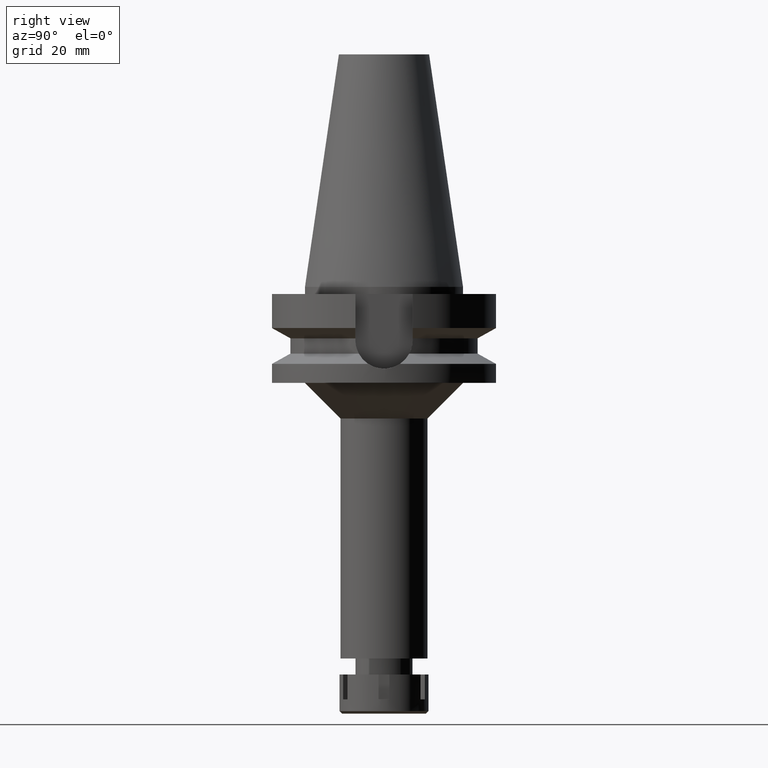
[diagram: clean part render]
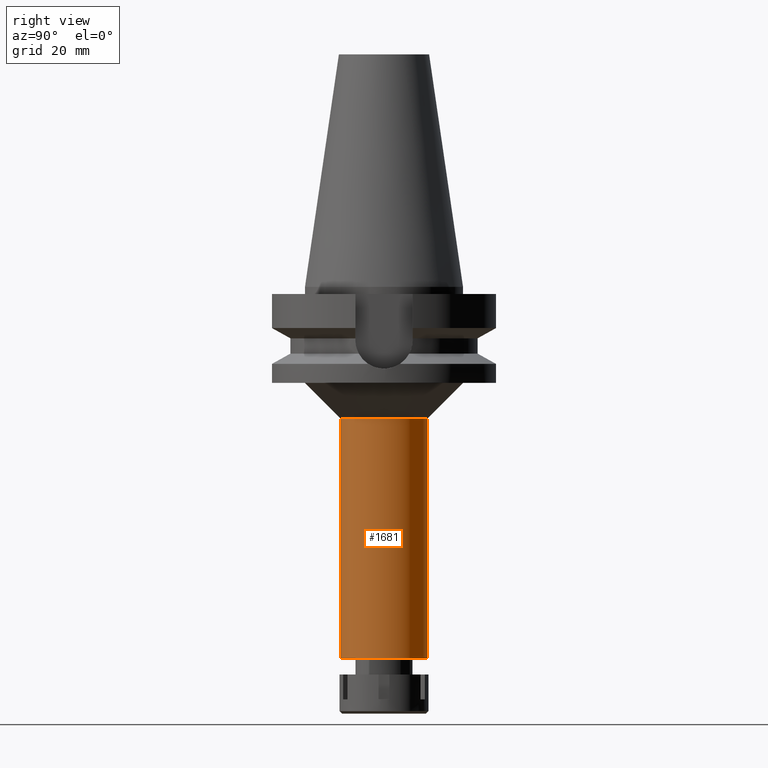
[diagram: same view with one face highlighted and labeled with its STEP entity id]
A machine part, right view. The second image highlights one B-rep face of the part: STEP entity #1681.
In plain terms, the highlighted cylindrical surface (partial cylindrical patch) has radius 12.25 mm, axis along (0, 0, -1).
Its self-contained STEP definition (entity closure, byte-faithful):
#100 = DIRECTION ( 'NONE',  ( 0.0000000000000000000, 0.0000000000000000000, -1.000000000000000000 ) ) ;
#184 = EDGE_CURVE ( 'NONE', #912, #3469, #1230, .T. ) ;
#201 = EDGE_CURVE ( 'NONE', #1622, #2574, #3340, .T. ) ;
#224 = ORIENTED_EDGE ( 'NONE', *, *, #2094, .T. ) ;
#231 = EDGE_CURVE ( 'NONE', #912, #2574, #923, .T. ) ;
#277 = AXIS2_PLACEMENT_3D ( 'NONE', #1243, #1224, #2609 ) ;
#371 = DIRECTION ( 'NONE',  ( 0.0000000000000000000, 1.000000000000000000, 0.0000000000000000000 ) ) ;
#384 = CARTESIAN_POINT ( 'NONE',  ( 0.0000000000000000000, -12.25000000000000000, -37.00000000000000000 ) ) ;
#504 = CYLINDRICAL_SURFACE ( 'NONE', #919, 12.25000000000000000 ) ;
#671 = EDGE_LOOP ( 'NONE', ( #1408, #224, #1942, #1475 ) ) ;
#758 = CARTESIAN_POINT ( 'NONE',  ( 0.0000000000000000000, -12.25000000000000000, -104.5000000000000000 ) ) ;
#912 = VERTEX_POINT ( 'NONE', #3361 ) ;
#919 = AXIS2_PLACEMENT_3D ( 'NONE', #3571, #1036, #2148 ) ;
#923 = LINE ( 'NONE', #2038, #1980 ) ;
#1036 = DIRECTION ( 'NONE',  ( 0.0000000000000000000, 0.0000000000000000000, -1.000000000000000000 ) ) ;
#1224 = DIRECTION ( 'NONE',  ( 0.0000000000000000000, 0.0000000000000000000, 1.000000000000000000 ) ) ;
#1230 = CIRCLE ( 'NONE', #2158, 12.25000000000000000 ) ;
#1243 = CARTESIAN_POINT ( 'NONE',  ( 0.0000000000000000000, 2.135416623673000070E-14, -104.5000000000000000 ) ) ;
#1312 = FACE_OUTER_BOUND ( 'NONE', #671, .T. ) ;
#1408 = ORIENTED_EDGE ( 'NONE', *, *, #184, .T. ) ;
#1475 = ORIENTED_EDGE ( 'NONE', *, *, #231, .F. ) ;
#1491 = LINE ( 'NONE', #384, #3155 ) ;
#1622 = VERTEX_POINT ( 'NONE', #758 ) ;
#1681 = ADVANCED_FACE ( 'NONE', ( #1312 ), #504, .T. ) ;
#1856 = DIRECTION ( 'NONE',  ( 0.0000000000000000000, 0.0000000000000000000, -1.000000000000000000 ) ) ;
#1942 = ORIENTED_EDGE ( 'NONE', *, *, #201, .T. ) ;
#1980 = VECTOR ( 'NONE', #3171, 1000.000000000000000 ) ;
#1988 = CARTESIAN_POINT ( 'NONE',  ( 0.0000000000000000000, -12.25000000000000000, -37.00000000000000000 ) ) ;
#2038 = CARTESIAN_POINT ( 'NONE',  ( 0.0000000000000000000, 12.25000000000000000, -37.00000000000000000 ) ) ;
#2078 = CARTESIAN_POINT ( 'NONE',  ( 0.0000000000000000000, 12.25000000000000000, -104.5000000000000000 ) ) ;
#2094 = EDGE_CURVE ( 'NONE', #3469, #1622, #1491, .T. ) ;
#2148 = DIRECTION ( 'NONE',  ( 0.0000000000000000000, -1.000000000000000000, 0.0000000000000000000 ) ) ;
#2158 = AXIS2_PLACEMENT_3D ( 'NONE', #2885, #100, #371 ) ;
#2574 = VERTEX_POINT ( 'NONE', #2078 ) ;
#2609 = DIRECTION ( 'NONE',  ( 0.0000000000000000000, -1.000000000000000000, 0.0000000000000000000 ) ) ;
#2885 = CARTESIAN_POINT ( 'NONE',  ( 0.0000000000000000000, 0.0000000000000000000, -37.00000000000000000 ) ) ;
#3155 = VECTOR ( 'NONE', #1856, 1000.000000000000000 ) ;
#3171 = DIRECTION ( 'NONE',  ( 0.0000000000000000000, 0.0000000000000000000, -1.000000000000000000 ) ) ;
#3340 = CIRCLE ( 'NONE', #277, 12.25000000000000000 ) ;
#3361 = CARTESIAN_POINT ( 'NONE',  ( 0.0000000000000000000, 12.25000000000000000, -37.00000000000000000 ) ) ;
#3469 = VERTEX_POINT ( 'NONE', #1988 ) ;
#3571 = CARTESIAN_POINT ( 'NONE',  ( 0.0000000000000000000, 2.135416623673000070E-14, 74.37000000000000455 ) ) ;